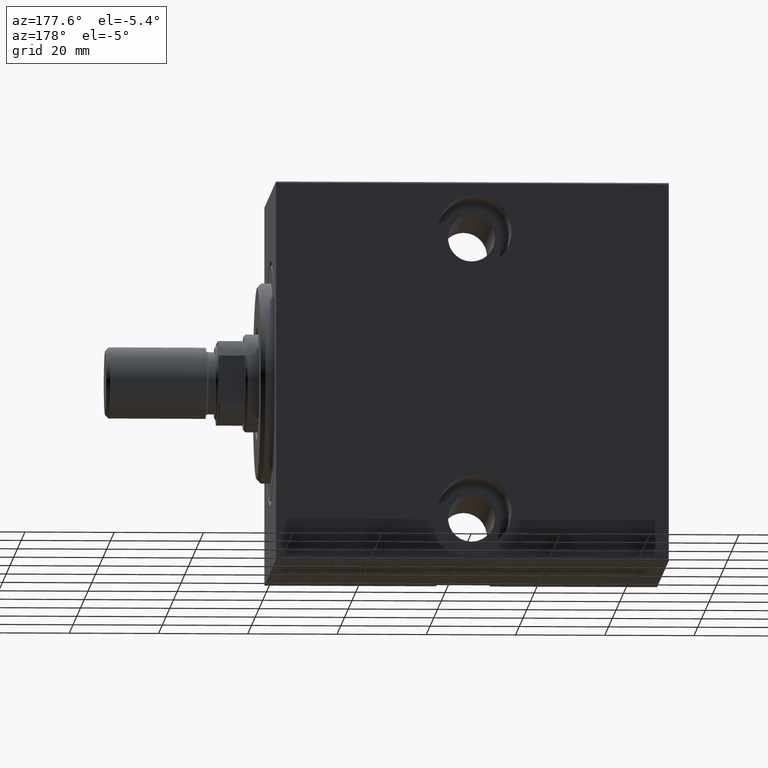
[diagram: clean part render]
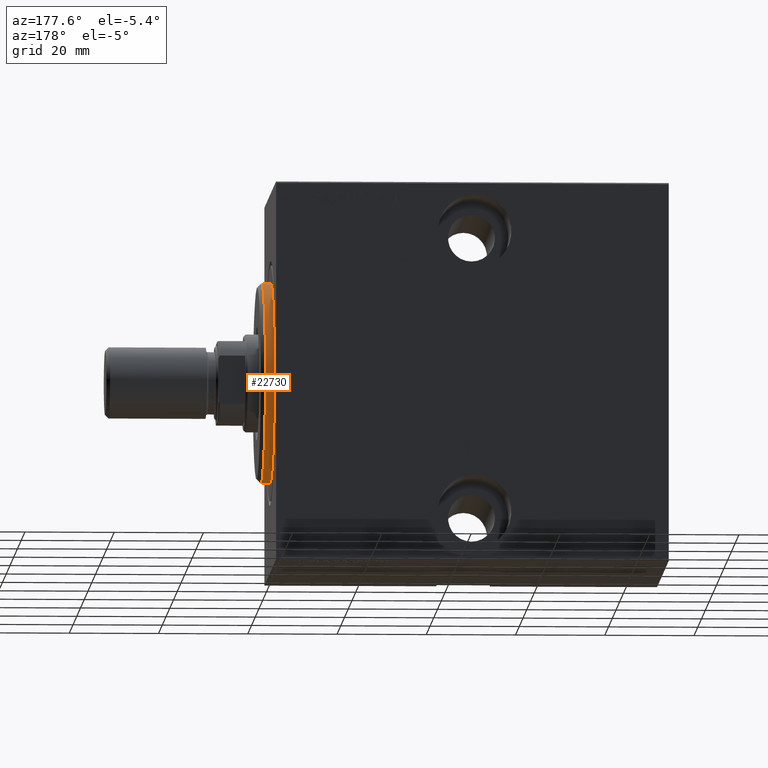
[diagram: same view with one face highlighted and labeled with its STEP entity id]
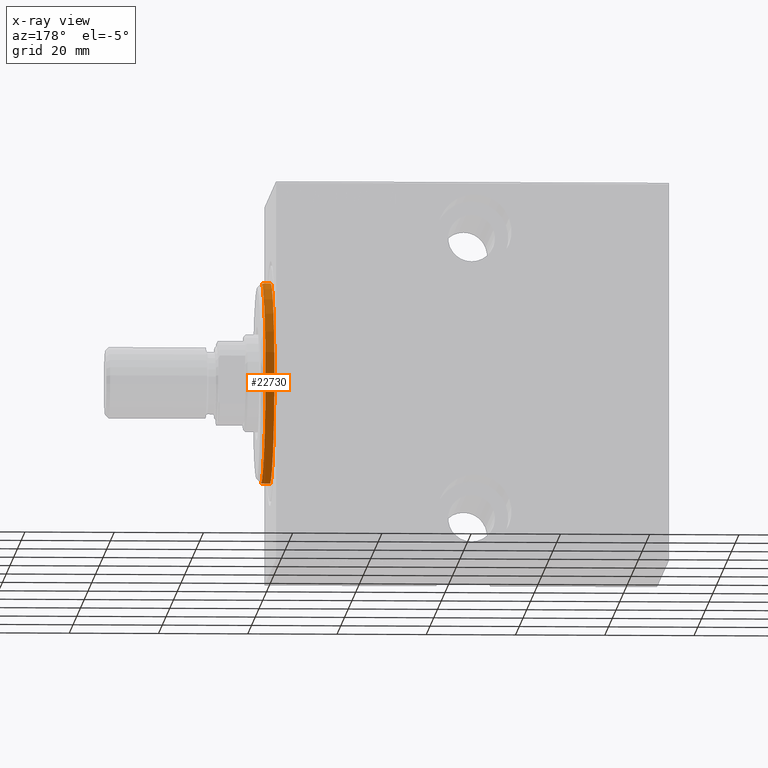
[diagram: x-ray of the same camera — body ghosted, the highlighted face saturated]
A machine part, auxiliary view. The second image highlights one B-rep face of the part: STEP entity #22730.
The next image is the same camera in x-ray: the body ghosted, the highlighted face saturated — about 0% of this face is hidden behind the body in this view.
In plain terms, the highlighted cylindrical surface (partial cylindrical patch) has radius 22.5 mm, axis along (-1, -0, -0).
Its self-contained STEP definition (entity closure, byte-faithful):
#603 = CARTESIAN_POINT ( 'NONE',  ( 1.999999999999999112, 0.000000000000000000, 0.000000000000000000 ) ) ;
#2403 = ORIENTED_EDGE ( 'NONE', *, *, #36542, .T. ) ;
#3656 = VECTOR ( 'NONE', #12540, 1000.000000000000000 ) ;
#5342 = DIRECTION ( 'NONE',  ( -1.000000000000000000, -0.000000000000000000, -0.000000000000000000 ) ) ;
#7022 = DIRECTION ( 'NONE',  ( -1.000000000000000000, -0.000000000000000000, -0.000000000000000000 ) ) ;
#8188 = CARTESIAN_POINT ( 'NONE',  ( 3.000000000000000000, 0.000000000000000000, 0.000000000000000000 ) ) ;
#8487 = CIRCLE ( 'NONE', #41962, 22.50000000000000355 ) ;
#8999 = VERTEX_POINT ( 'NONE', #35558 ) ;
#10529 = CIRCLE ( 'NONE', #34877, 22.50000000000000355 ) ;
#10959 = VERTEX_POINT ( 'NONE', #34200 ) ;
#12540 = DIRECTION ( 'NONE',  ( -1.000000000000000000, -0.000000000000000000, -0.000000000000000000 ) ) ;
#14413 = EDGE_CURVE ( 'NONE', #8999, #10959, #20733, .T. ) ;
#15240 = ORIENTED_EDGE ( 'NONE', *, *, #36672, .T. ) ;
#15809 = LINE ( 'NONE', #31928, #3656 ) ;
#16723 = DIRECTION ( 'NONE',  ( -1.000000000000000000, 0.000000000000000000, 0.000000000000000000 ) ) ;
#17068 = ORIENTED_EDGE ( 'NONE', *, *, #14413, .F. ) ;
#20733 = LINE ( 'NONE', #33816, #35940 ) ;
#21679 = CYLINDRICAL_SURFACE ( 'NONE', #34041, 22.50000000000000355 ) ;
#22730 = ADVANCED_FACE ( 'NONE', ( #34542 ), #21679, .T. ) ;
#27421 = ORIENTED_EDGE ( 'NONE', *, *, #29720, .T. ) ;
#27970 = DIRECTION ( 'NONE',  ( 1.000000000000000000, -0.000000000000000000, 0.000000000000000000 ) ) ;
#29720 = EDGE_CURVE ( 'NONE', #8999, #30370, #10529, .T. ) ;
#30370 = VERTEX_POINT ( 'NONE', #37243 ) ;
#31928 = CARTESIAN_POINT ( 'NONE',  ( 3.000000000000000000, 2.755455298081545172E-15, -22.50000000000000355 ) ) ;
#32866 = CARTESIAN_POINT ( 'NONE',  ( 0.000000000000000000, 2.755455298081545172E-15, -22.50000000000000355 ) ) ;
#33816 = CARTESIAN_POINT ( 'NONE',  ( 3.000000000000000000, 0.000000000000000000, 22.50000000000000355 ) ) ;
#34041 = AXIS2_PLACEMENT_3D ( 'NONE', #8188, #5342, #41484 ) ;
#34200 = CARTESIAN_POINT ( 'NONE',  ( 0.000000000000000000, 0.000000000000000000, 22.50000000000000355 ) ) ;
#34298 = CARTESIAN_POINT ( 'NONE',  ( 0.000000000000000000, 0.000000000000000000, 0.000000000000000000 ) ) ;
#34542 = FACE_OUTER_BOUND ( 'NONE', #35091, .T. ) ;
#34877 = AXIS2_PLACEMENT_3D ( 'NONE', #603, #16723, #36120 ) ;
#35091 = EDGE_LOOP ( 'NONE', ( #27421, #2403, #15240, #17068 ) ) ;
#35558 = CARTESIAN_POINT ( 'NONE',  ( 1.999999999999999112, 0.000000000000000000, 22.50000000000000355 ) ) ;
#35940 = VECTOR ( 'NONE', #7022, 1000.000000000000000 ) ;
#36120 = DIRECTION ( 'NONE',  ( 0.000000000000000000, 0.000000000000000000, -1.000000000000000000 ) ) ;
#36542 = EDGE_CURVE ( 'NONE', #30370, #37793, #15809, .T. ) ;
#36672 = EDGE_CURVE ( 'NONE', #37793, #10959, #8487, .T. ) ;
#37243 = CARTESIAN_POINT ( 'NONE',  ( 1.999999999999999112, 2.755455298081545172E-15, -22.50000000000000355 ) ) ;
#37793 = VERTEX_POINT ( 'NONE', #32866 ) ;
#41450 = DIRECTION ( 'NONE',  ( 0.000000000000000000, 0.000000000000000000, -1.000000000000000000 ) ) ;
#41484 = DIRECTION ( 'NONE',  ( 0.000000000000000000, 0.000000000000000000, 1.000000000000000000 ) ) ;
#41962 = AXIS2_PLACEMENT_3D ( 'NONE', #34298, #27970, #41450 ) ;